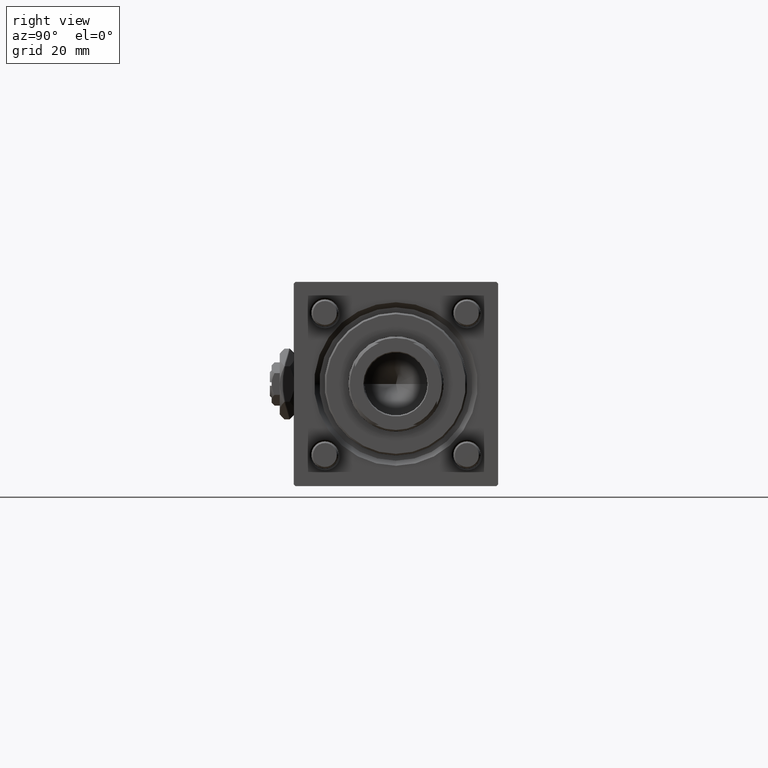
[diagram: clean part render]
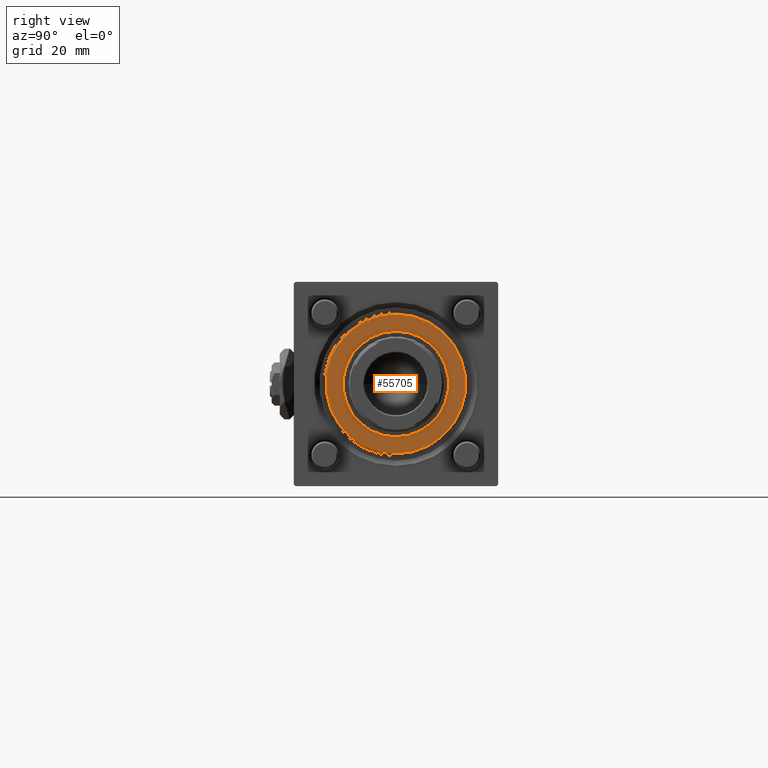
[diagram: same view with one face highlighted and labeled with its STEP entity id]
A machine part, right view. The second image highlights one B-rep face of the part: STEP entity #55705.
In plain terms, the highlighted planar face has unit normal (1, 0, 0).
Its self-contained STEP definition (entity closure, byte-faithful):
#72 = DIRECTION ( 'NONE',  ( 0.000000000000000000, 0.000000000000000000, 1.000000000000000000 ) ) ;
#1191 = CARTESIAN_POINT ( 'NONE',  ( 20.49999999999999645, 2.541142108230757480E-15, 40.70000000000000284 ) ) ;
#1766 = CARTESIAN_POINT ( 'NONE',  ( 0.000000000000000000, 0.000000000000000000, 40.70000000000000284 ) ) ;
#2909 = DIRECTION ( 'NONE',  ( 1.000000000000000000, 0.000000000000000000, 0.000000000000000000 ) ) ;
#3174 = DIRECTION ( 'NONE',  ( 1.000000000000000000, 0.000000000000000000, 0.000000000000000000 ) ) ;
#5820 = AXIS2_PLACEMENT_3D ( 'NONE', #31160, #8023, #34691 ) ;
#6195 = FACE_BOUND ( 'NONE', #14753, .T. ) ;
#8023 = DIRECTION ( 'NONE',  ( 0.000000000000000000, 0.000000000000000000, 1.000000000000000000 ) ) ;
#8413 = AXIS2_PLACEMENT_3D ( 'NONE', #1766, #11808, #56225 ) ;
#8503 = VERTEX_POINT ( 'NONE', #33241 ) ;
#11764 = ORIENTED_EDGE ( 'NONE', *, *, #25654, .T. ) ;
#11808 = DIRECTION ( 'NONE',  ( 0.000000000000000000, 0.000000000000000000, 1.000000000000000000 ) ) ;
#14753 = EDGE_LOOP ( 'NONE', ( #48597, #41721 ) ) ;
#15330 = VERTEX_POINT ( 'NONE', #43237 ) ;
#18125 = DIRECTION ( 'NONE',  ( 1.000000000000000000, 0.000000000000000000, 0.000000000000000000 ) ) ;
#18339 = EDGE_CURVE ( 'NONE', #8503, #15330, #39493, .T. ) ;
#19255 = EDGE_LOOP ( 'NONE', ( #11764, #48208 ) ) ;
#20215 = EDGE_CURVE ( 'NONE', #15330, #8503, #29117, .T. ) ;
#22161 = DIRECTION ( 'NONE',  ( 0.000000000000000000, 0.000000000000000000, 1.000000000000000000 ) ) ;
#25654 = EDGE_CURVE ( 'NONE', #37749, #36519, #27403, .T. ) ;
#27403 = CIRCLE ( 'NONE', #31218, 20.49999999999999645 ) ;
#29117 = CIRCLE ( 'NONE', #35726, 15.50000000000000000 ) ;
#29828 = DIRECTION ( 'NONE',  ( 0.000000000000000000, 0.000000000000000000, 1.000000000000000000 ) ) ;
#30158 = CARTESIAN_POINT ( 'NONE',  ( 0.000000000000000000, 0.000000000000000000, 40.70000000000000284 ) ) ;
#30999 = EDGE_CURVE ( 'NONE', #36519, #37749, #55775, .T. ) ;
#31160 = CARTESIAN_POINT ( 'NONE',  ( 0.000000000000000000, 0.000000000000000000, 40.70000000000000284 ) ) ;
#31218 = AXIS2_PLACEMENT_3D ( 'NONE', #44812, #72, #18125 ) ;
#33241 = CARTESIAN_POINT ( 'NONE',  ( 15.50000000000000000, 0.000000000000000000, 40.70000000000000284 ) ) ;
#34691 = DIRECTION ( 'NONE',  ( 1.000000000000000000, 0.000000000000000000, 0.000000000000000000 ) ) ;
#35726 = AXIS2_PLACEMENT_3D ( 'NONE', #30158, #22161, #2909 ) ;
#36519 = VERTEX_POINT ( 'NONE', #1191 ) ;
#37749 = VERTEX_POINT ( 'NONE', #49668 ) ;
#39493 = CIRCLE ( 'NONE', #54602, 15.50000000000000000 ) ;
#41721 = ORIENTED_EDGE ( 'NONE', *, *, #20215, .F. ) ;
#43237 = CARTESIAN_POINT ( 'NONE',  ( -15.50000000000000000, 1.898202538678397557E-15, 40.70000000000000284 ) ) ;
#43751 = CARTESIAN_POINT ( 'NONE',  ( 0.000000000000000000, 0.000000000000000000, 40.70000000000000284 ) ) ;
#44812 = CARTESIAN_POINT ( 'NONE',  ( 0.000000000000000000, 0.000000000000000000, 40.70000000000000284 ) ) ;
#47371 = FACE_OUTER_BOUND ( 'NONE', #19255, .T. ) ;
#48208 = ORIENTED_EDGE ( 'NONE', *, *, #30999, .T. ) ;
#48597 = ORIENTED_EDGE ( 'NONE', *, *, #18339, .F. ) ;
#49668 = CARTESIAN_POINT ( 'NONE',  ( -20.49999999999999645, 0.000000000000000000, 40.70000000000000284 ) ) ;
#52392 = PLANE ( 'NONE',  #8413 ) ;
#54602 = AXIS2_PLACEMENT_3D ( 'NONE', #43751, #29828, #3174 ) ;
#55705 = ADVANCED_FACE ( 'NONE', ( #6195, #47371 ), #52392, .T. ) ;
#55775 = CIRCLE ( 'NONE', #5820, 20.49999999999999645 ) ;
#56225 = DIRECTION ( 'NONE',  ( 1.000000000000000000, 0.000000000000000000, -0.000000000000000000 ) ) ;